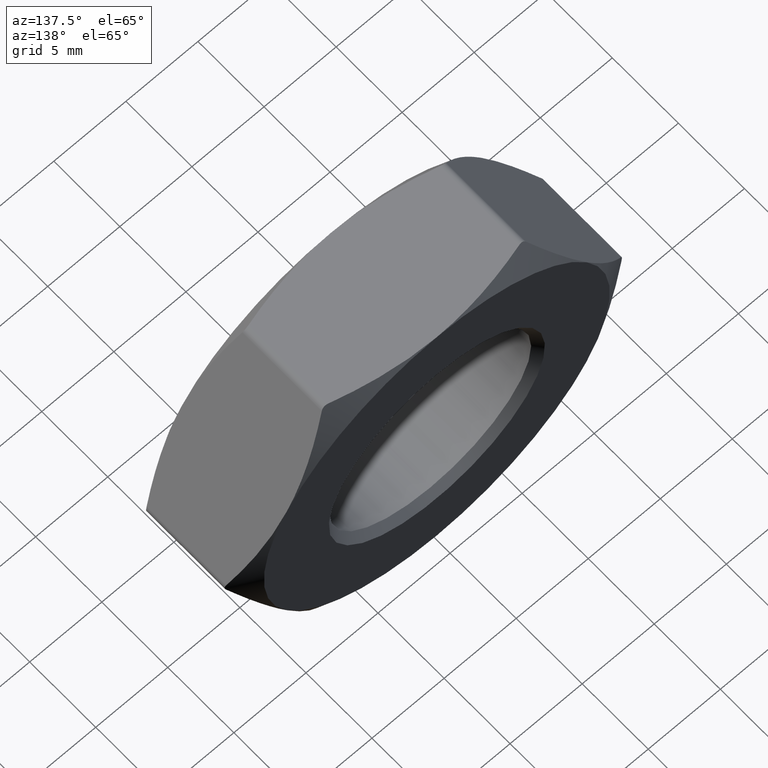
[diagram: clean part render]
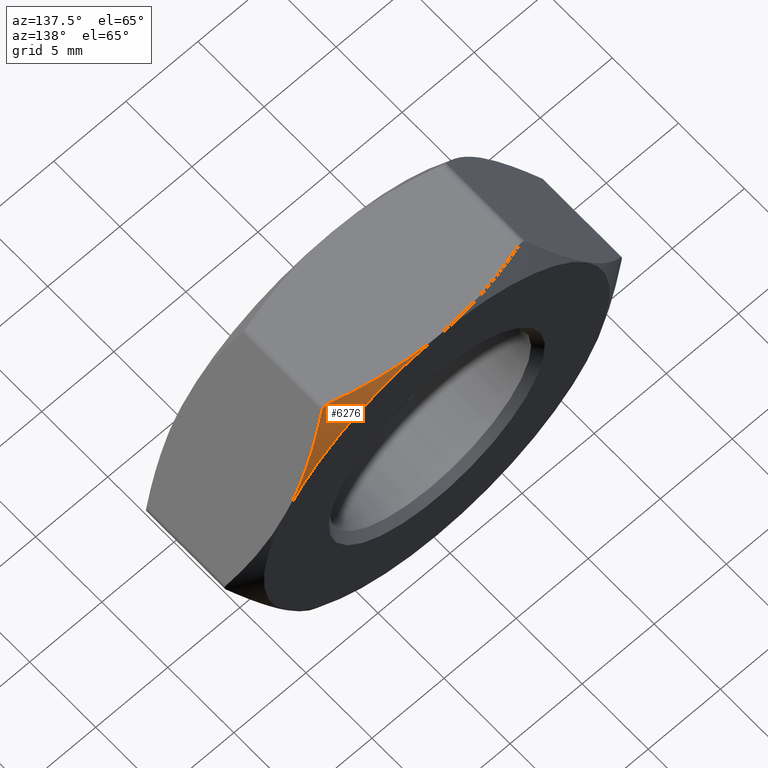
[diagram: same view with one face highlighted and labeled with its STEP entity id]
A machine part, auxiliary view. The second image highlights one B-rep face of the part: STEP entity #6276.
In plain terms, the highlighted conical surface has half-angle 60 deg.
Its self-contained STEP definition (entity closure, byte-faithful):
#253 = CARTESIAN_POINT ( 'NONE',  ( 8.990347189129831700, 3.820028020092778800, 8.428261890743083700 ) ) ;
#1306 = EDGE_LOOP ( 'NONE', ( #11600, #7200, #8872, #16790 ) ) ;
#1406 = AXIS2_PLACEMENT_3D ( 'NONE', #7489, #7657, #12578 ) ;
#1655 = CARTESIAN_POINT ( 'NONE',  ( 10.11082040635887400, 4.000000000000011500, 6.487545349982226200 ) ) ;
#1814 = CARTESIAN_POINT ( 'NONE',  ( 2.250940326994609100, 3.886546577122185700, 12.00000000000000200 ) ) ;
#2960 = CARTESIAN_POINT ( 'NONE',  ( 9.268373994161450500, 3.886760395136418000, 7.946705338562270300 ) ) ;
#4054 = CARTESIAN_POINT ( 'NONE',  ( -4.494986686778388400E-017, 4.000000000000000000, 0.0000000000000000000 ) ) ;
#4082 = EDGE_CURVE ( 'NONE', #11227, #5577, #5899, .T. ) ;
#4216 = CARTESIAN_POINT ( 'NONE',  ( 7.614553384551763700, 3.313219605597454500, 10.81120666101079700 ) ) ;
#4250 = CARTESIAN_POINT ( 'NONE',  ( 6.639528095680694800, 3.010220883462388900, 12.00000000000000000 ) ) ;
#4266 = CARTESIAN_POINT ( 'NONE',  ( 7.072540797572915300, 3.010220883462386300, 11.75000000000000200 ) ) ;
#4268 = DIRECTION ( 'NONE',  ( 1.000000000000000000, 0.0000000000000000000, 0.0000000000000000000 ) ) ;
#4311 = CARTESIAN_POINT ( 'NONE',  ( 6.965490637025101100, 2.972817233024176900, 11.88924742842494500 ) ) ;
#4701 = CARTESIAN_POINT ( 'NONE',  ( 7.072540797572915300, 3.010220883462386300, 11.75000000000000200 ) ) ;
#4968 = CARTESIAN_POINT ( 'NONE',  ( -4.494986686778388400E-017, 4.000000000000000000, 12.00000000000000200 ) ) ;
#5024 = VERTEX_POINT ( 'NONE', #4968 ) ;
#5538 = CARTESIAN_POINT ( 'NONE',  ( 6.812782701786550100, 2.972905852214889200, 11.97722948395739500 ) ) ;
#5577 = VERTEX_POINT ( 'NONE', #4701 ) ;
#5687 = B_SPLINE_CURVE_WITH_KNOTS ( 'NONE', 3,
 ( #11923, #13382, #5538, #4311, #6888, #8190 ),
 .UNSPECIFIED., .F., .F.,
 ( 4, 2, 4 ),
 ( 1.788112030672749000E-018, 0.0002638430375139713500, 0.0005276860750279408700 ),
 .UNSPECIFIED. ) ;
#5868 = CARTESIAN_POINT ( 'NONE',  ( 1.122912357192196400, 3.977208455690130200, 12.00000000000000200 ) ) ;
#5899 = B_SPLINE_CURVE_WITH_KNOTS ( 'NONE', 3,
 ( #7976, #1655, #9295, #2960, #253, #11987, #4216, #4266 ),
 .UNSPECIFIED., .F., .F.,
 ( 4, 2, 2, 4 ),
 ( 0.007010445034807143800, 0.008682192066603521300, 0.01035393909839989700, 0.01369743316199265400 ),
 .UNSPECIFIED. ) ;
#5924 = CARTESIAN_POINT ( 'NONE',  ( 6.639528095680694800, 3.010220883462388900, 12.00000000000000000 ) ) ;
#6044 = AXIS2_PLACEMENT_3D ( 'NONE', #4054, #11932, #4268 ) ;
#6276 = ADVANCED_FACE ( 'NONE', ( #12590 ), #14412, .T. ) ;
#6888 = CARTESIAN_POINT ( 'NONE',  ( 7.029609111664274000, 2.986220986998712900, 11.82435986124865600 ) ) ;
#7200 = ORIENTED_EDGE ( 'NONE', *, *, #9001, .T. ) ;
#7489 = CARTESIAN_POINT ( 'NONE',  ( -4.494986686778388400E-017, 4.000000000000000000, 0.0000000000000000000 ) ) ;
#7657 = DIRECTION ( 'NONE',  ( 1.123746671694597100E-017, -1.000000000000000000, -0.0000000000000000000 ) ) ;
#7976 = CARTESIAN_POINT ( 'NONE',  ( 10.39230484541326600, 4.000000000000000000, 5.999999999999998200 ) ) ;
#8190 = CARTESIAN_POINT ( 'NONE',  ( 7.072540797572915300, 3.010220883462386300, 11.75000000000000200 ) ) ;
#8242 = CARTESIAN_POINT ( 'NONE',  ( 0.5605972413833050200, 4.000000000000000900, 12.00000000000000200 ) ) ;
#8582 = B_SPLINE_CURVE_WITH_KNOTS ( 'NONE', 3,
 ( #5924, #9607, #16115, #13601, #1814, #5868, #8242, #13438 ),
 .UNSPECIFIED., .F., .F.,
 ( 4, 2, 2, 4 ),
 ( 0.005378634189493562500, 0.008726149205378648900, 0.01039990671332119200, 0.01207366422126373600 ),
 .UNSPECIFIED. ) ;
#8872 = ORIENTED_EDGE ( 'NONE', *, *, #4082, .F. ) ;
#9001 = EDGE_CURVE ( 'NONE', #16381, #5577, #5687, .T. ) ;
#9295 = CARTESIAN_POINT ( 'NONE',  ( 9.828025114344681500, 3.976788126677495100, 6.977361163892082300 ) ) ;
#9332 = CIRCLE ( 'NONE', #1406, 12.00000000000000200 ) ;
#9453 = EDGE_CURVE ( 'NONE', #11227, #5024, #9332, .T. ) ;
#9607 = CARTESIAN_POINT ( 'NONE',  ( 5.564852187614547100, 3.310606367744594300, 12.00000000000000000 ) ) ;
#11227 = VERTEX_POINT ( 'NONE', #15768 ) ;
#11600 = ORIENTED_EDGE ( 'NONE', *, *, #11632, .F. ) ;
#11632 = EDGE_CURVE ( 'NONE', #16381, #5024, #8582, .T. ) ;
#11923 = CARTESIAN_POINT ( 'NONE',  ( 6.639528095680694800, 3.010220883462388900, 12.00000000000000000 ) ) ;
#11932 = DIRECTION ( 'NONE',  ( 1.123746671694597100E-017, -1.000000000000000000, -0.0000000000000000000 ) ) ;
#11987 = CARTESIAN_POINT ( 'NONE',  ( 8.161051184807725200, 3.562063013138929300, 9.864644704742836700 ) ) ;
#12578 = DIRECTION ( 'NONE',  ( 1.000000000000000000, 0.0000000000000000000, 0.0000000000000000000 ) ) ;
#12590 = FACE_OUTER_BOUND ( 'NONE', #1306, .T. ) ;
#13382 = CARTESIAN_POINT ( 'NONE',  ( 6.725359445022292900, 2.986229937685103100, 11.99999999999999800 ) ) ;
#13438 = CARTESIAN_POINT ( 'NONE',  ( -4.494986686778388400E-017, 4.000000000000000000, 12.00000000000000200 ) ) ;
#13601 = CARTESIAN_POINT ( 'NONE',  ( 2.812232842606246400, 3.818972809719022500, 12.00000000000000000 ) ) ;
#14412 = CONICAL_SURFACE ( 'NONE', #6044, 12.00000000000000200, 1.047197551196603400 ) ;
#15768 = CARTESIAN_POINT ( 'NONE',  ( 10.39230484541326600, 4.000000000000000000, 5.999999999999998200 ) ) ;
#16115 = CARTESIAN_POINT ( 'NONE',  ( 4.476170215682654600, 3.559454543503303800, 12.00000000000000000 ) ) ;
#16381 = VERTEX_POINT ( 'NONE', #4250 ) ;
#16790 = ORIENTED_EDGE ( 'NONE', *, *, #9453, .T. ) ;